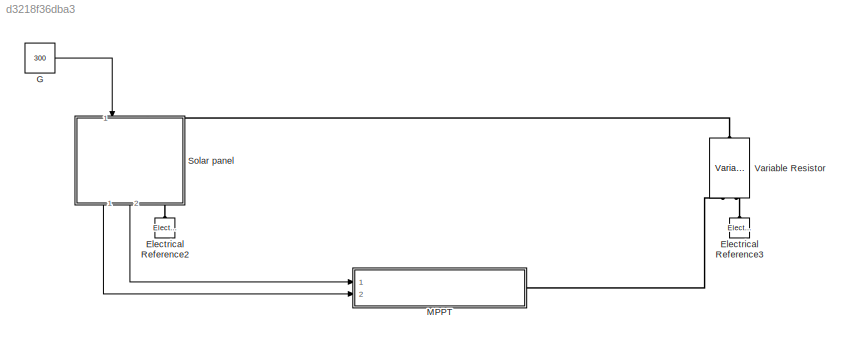
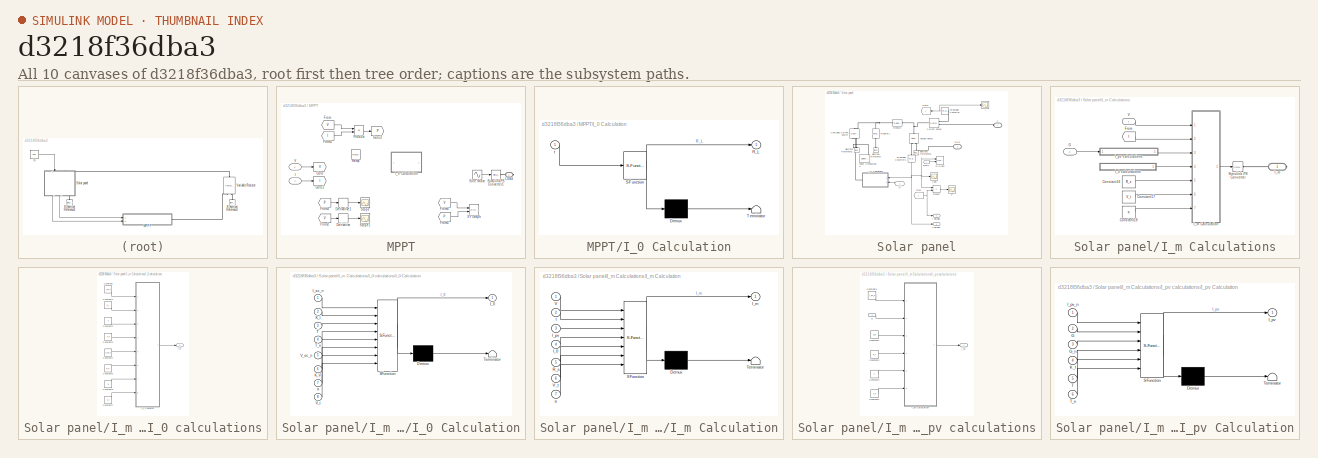
[diagram: thumbnail index - all 10 canvases of the model, root first then tree order]
MODEL slx_d3218f36dba3
KIND model
CONFIG AbsTol = auto
CONFIG FixedStep = 0.0001
CONFIG MaxStep = auto
CONFIG MinStep = auto
CONFIG RelTol = 1e-3
CONFIG SampleTimeConstraint = Unconstrained
CONFIG Solver = FixedStepAuto
CONFIG SolverMode = Auto
CONFIG SolverName = FixedStepAuto
CONFIG StartTime = 0.0
CONFIG StopTime = 10.0
BLOCK [Reference] Electrical Reference2  REF=fl_lib/Electrical/Electrical Elements/Electrical Reference
  Ports = [0, 0, 0, 0, 0, 1]
  SourceBlock = fl_lib/Electrical/Electrical Elements/Electrical Reference
  SourceType = Electrical Reference
BLOCK [Reference] Electrical Reference3  REF=fl_lib/Electrical/Electrical Elements/Electrical Reference
  Ports = [0, 0, 0, 0, 0, 1]
  SourceBlock = fl_lib/Electrical/Electrical Elements/Electrical Reference
  SourceType = Electrical Reference
BLOCK [Constant] G
  Value = 300
BLOCK [SubSystem] MPPT
  Ports = [2, 0, 0, 0, 0, 0, 1]
  RequestExecContextInheritance = off
  Variant = off
BLOCK [Derivative] MPPT/Derivative
BLOCK [Derivative] MPPT/Derivative1
BLOCK [From] MPPT/From
  GotoTag = V
BLOCK [From] MPPT/From1
  GotoTag = I
BLOCK [From] MPPT/From2
  GotoTag = V
BLOCK [From] MPPT/From3
  GotoTag = P
BLOCK [From] MPPT/From4
  GotoTag = V
BLOCK [From] MPPT/From5
  GotoTag = P
BLOCK [Goto] MPPT/Goto
  GotoTag = V
BLOCK [Goto] MPPT/Goto1
  GotoTag = I
BLOCK [Goto] MPPT/Goto2
  GotoTag = P
BLOCK [Inport] MPPT/I
  IconDisplay = Port number
  Port = 2
BLOCK [SubSystem] MPPT/I_0 Calculation
  ErrorFcn = Stateflow.Translate.translate
  PermitHierarchicalResolution = ExplicitOnly
  Ports = [1, 1]
  RequestExecContextInheritance = off
  SFBlockType = MATLAB Function
  TreatAsAtomicUnit = on
  Variant = off
BLOCK [Demux] MPPT/I_0 Calculation/ Demux 
  Outputs = 1
  Ports = [1, 1]
BLOCK [S-Function] MPPT/I_0 Calculation/ SFunction 
  EnableBusSupport = on
  FunctionName = sf_sfun
  PortCounts = [1 2]
  Ports = [1, 2]
  SFunctionDeploymentMode = off
  Tag = Stateflow S-Function GSK_PVModel_03 4
BLOCK [Terminator] MPPT/I_0 Calculation/ Terminator 
BLOCK [Outport] MPPT/I_0 Calculation/R_L
  IconDisplay = Port number
BLOCK [Inport] MPPT/I_0 Calculation/t
  IconDisplay = Port number
BLOCK [PMIOPort] MPPT/Load
  Port = 1
  Side = Right
BLOCK [Product] MPPT/Product
  InputSameDT = off
  OutDataTypeStr = Inherit: Inherit via internal rule
  Ports = [2, 1]
  RndMeth = Floor
  SaturateOnIntegerOverflow = off
BLOCK [Reference] MPPT/Ramp  REF=simulink/Sources/Ramp
  Ports = [0, 1]
  SourceBlock = simulink/Sources/Ramp
  SourceType = Ramp
BLOCK [Scope] MPPT/Scope
  Ports = [1]
  ScopeSpecificationString = Simulink.scopes.TimeScopeBlockCfg('CurrentConfiguration', extmgr.ConfigurationSet(extmgr.Configuration('Core','General UI',true),extmgr.Configuration('Core','Source UI',true),extmgr.Configuration('Sources','WiredSimulink',true,'DataLoggingVariableName','ScopeData3'),extmgr.Configuration('Visuals','Time Domain',true,'SerializedDisplays',{struct('MinYLimReal','-3310.60837','MaxYLimReal','487.92818',...<+1390ch>
BLOCK [Scope] MPPT/Scope1
  Ports = [1]
  ScopeSpecificationString = Simulink.scopes.TimeScopeBlockCfg('CurrentConfiguration', extmgr.ConfigurationSet(extmgr.Configuration('Core','General UI',true),extmgr.Configuration('Core','Source UI',true),extmgr.Configuration('Sources','WiredSimulink',true,'DataLoggingVariableName','ScopeData4'),extmgr.Configuration('Visuals','Time Domain',true,'SerializedDisplays',{struct('MinYLimReal','-1.00000','MaxYLimReal','1.00000','YLab...<+1395ch>
BLOCK [Reference] MPPT/Simulink-PS Converter1  REF=nesl_utility/Simulink-PS
Converter
  Ports = [1, 0, 0, 0, 0, 0, 1]
  SourceBlock = nesl_utility/Simulink-PS\nConverter
  SourceType = Simulink-PS\nConverter
BLOCK [Sin] MPPT/Sine Wave
  Amplitude = 25
  Bias = 25
  Ports = [0, 1]
  SampleTime = 0
BLOCK [Inport] MPPT/V
  IconDisplay = Port number
BLOCK [Reference] MPPT/XY Graph  REF=simulink/Sinks/XY Graph
  Ports = [2]
  SourceBlock = simulink/Sinks/XY Graph
  SourceType = XY scope.
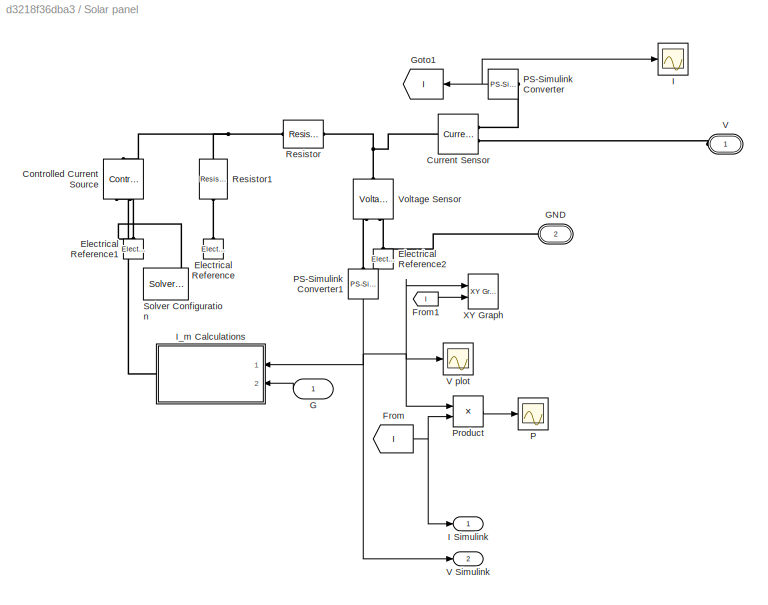
BLOCK [SubSystem] Solar panel
  Ports = [1, 2, 0, 0, 0, 1, 1]
  RequestExecContextInheritance = off
  Variant = off
BLOCK [Reference] Solar panel/Controlled Current Source  REF=fl_lib/Electrical/Electrical Sources/Controlled Current
Source
  Ports = [0, 0, 0, 0, 0, 1, 2]
  SourceBlock = fl_lib/Electrical/Electrical Sources/Controlled Current\nSource
  SourceType = Controlled Current\nSource
BLOCK [Reference] Solar panel/Current Sensor  REF=fl_lib/Electrical/Electrical Sensors/Current Sensor
  Ports = [0, 0, 0, 0, 0, 1, 2]
  SourceBlock = fl_lib/Electrical/Electrical Sensors/Current Sensor
  SourceType = Current Sensor
BLOCK [Reference] Solar panel/Electrical Reference  REF=fl_lib/Electrical/Electrical Elements/Electrical Reference
  Ports = [0, 0, 0, 0, 0, 1]
  SourceBlock = fl_lib/Electrical/Electrical Elements/Electrical Reference
  SourceType = Electrical Reference
BLOCK [Reference] Solar panel/Electrical Reference1  REF=fl_lib/Electrical/Electrical Elements/Electrical Reference
  Ports = [0, 0, 0, 0, 0, 1]
  SourceBlock = fl_lib/Electrical/Electrical Elements/Electrical Reference
  SourceType = Electrical Reference
BLOCK [Reference] Solar panel/Electrical Reference2  REF=fl_lib/Electrical/Electrical Elements/Electrical Reference
  Ports = [0, 0, 0, 0, 0, 1]
  SourceBlock = fl_lib/Electrical/Electrical Elements/Electrical Reference
  SourceType = Electrical Reference
BLOCK [From] Solar panel/From
  GotoTag = I
BLOCK [From] Solar panel/From1
  GotoTag = I
BLOCK [Inport] Solar panel/G
  IconDisplay = Port number
BLOCK [PMIOPort] Solar panel/GND
  Port = 2
  Side = Right
BLOCK [Goto] Solar panel/Goto1
  GotoTag = I
BLOCK [Scope] Solar panel/I
  Ports = [1]
  ScopeSpecificationString = Simulink.scopes.TimeScopeBlockCfg('CurrentConfiguration', extmgr.ConfigurationSet(extmgr.Configuration('Core','General UI',true),extmgr.Configuration('Core','Source UI',true),extmgr.Configuration('Sources','WiredSimulink',true),extmgr.Configuration('Visuals','Time Domain',true,'SerializedDisplays',{struct('MinYLimReal','1.9139','MaxYLimReal','1.91797','YLabelReal','','MinYLimMag','1.9139','MaxYLim...<+1335ch>
BLOCK [Outport] Solar panel/I Simulink
  IconDisplay = Port number
BLOCK [SubSystem] Solar panel/I_m Calculations
  Ports = [2, 0, 0, 0, 0, 0, 1]
  RequestExecContextInheritance = off
  Variant = off
BLOCK [Constant] Solar panel/I_m Calculations/Constant16
  Value = R_s
BLOCK [Constant] Solar panel/I_m Calculations/Constant17
  Value = V_t
BLOCK [Constant] Solar panel/I_m Calculations/Constant18
  Value = a
BLOCK [From] Solar panel/I_m Calculations/From
  GotoTag = I
BLOCK [Inport] Solar panel/I_m Calculations/G
  IconDisplay = Port number
  Port = 2
BLOCK [SubSystem] Solar panel/I_m Calculations/I_0 calculations
  Ports = [0, 1]
  RequestExecContextInheritance = off
  Variant = off
BLOCK [Constant] Solar panel/I_m Calculations/I_0 calculations/Constant
  Value = I_sc_n
BLOCK [Constant] Solar panel/I_m Calculations/I_0 calculations/Constant1
  Value = K_I
BLOCK [Constant] Solar panel/I_m Calculations/I_0 calculations/Constant2
  Value = T
BLOCK [Constant] Solar panel/I_m Calculations/I_0 calculations/Constant3
  Value = T_n
BLOCK [Constant] Solar panel/I_m Calculations/I_0 calculations/Constant4
  Value = V_oc_n
BLOCK [Constant] Solar panel/I_m Calculations/I_0 calculations/Constant5
  Value = K_V
BLOCK [Constant] Solar panel/I_m Calculations/I_0 calculations/Constant6
  Value = a
BLOCK [Constant] Solar panel/I_m Calculations/I_0 calculations/Constant7
  Value = V_t
BLOCK [Outport] Solar panel/I_m Calculations/I_0 calculations/I_0
  IconDisplay = Port number
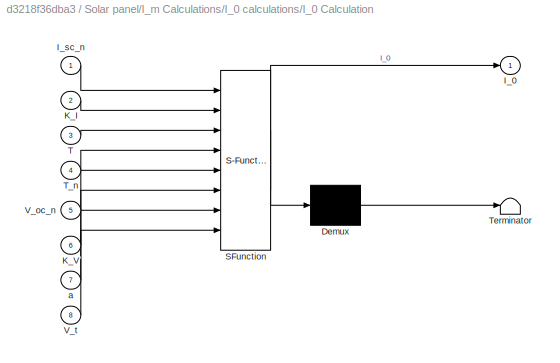
BLOCK [SubSystem] Solar panel/I_m Calculations/I_0 calculations/I_0 Calculation
  ErrorFcn = Stateflow.Translate.translate
  PermitHierarchicalResolution = ExplicitOnly
  Ports = [8, 1]
  RequestExecContextInheritance = off
  SFBlockType = MATLAB Function
  TreatAsAtomicUnit = on
  Variant = off
BLOCK [Demux] Solar panel/I_m Calculations/I_0 calculations/I_0 Calculation/ Demux 
  Outputs = 1
  Ports = [1, 1]
BLOCK [S-Function] Solar panel/I_m Calculations/I_0 calculations/I_0 Calculation/ SFunction 
  EnableBusSupport = on
  FunctionName = sf_sfun
  PortCounts = [8 2]
  Ports = [8, 2]
  SFunctionDeploymentMode = off
  Tag = Stateflow S-Function GSK_PVModel_03 2
BLOCK [Terminator] Solar panel/I_m Calculations/I_0 calculations/I_0 Calculation/ Terminator 
BLOCK [Outport] Solar panel/I_m Calculations/I_0 calculations/I_0 Calculation/I_0
  IconDisplay = Port number
BLOCK [Inport] Solar panel/I_m Calculations/I_0 calculations/I_0 Calculation/I_sc_n
  IconDisplay = Port number
BLOCK [Inport] Solar panel/I_m Calculations/I_0 calculations/I_0 Calculation/K_I
  IconDisplay = Port number
  Port = 2
BLOCK [Inport] Solar panel/I_m Calculations/I_0 calculations/I_0 Calculation/K_V
  IconDisplay = Port number
  Port = 6
BLOCK [Inport] Solar panel/I_m Calculations/I_0 calculations/I_0 Calculation/T
  IconDisplay = Port number
  Port = 3
BLOCK [Inport] Solar panel/I_m Calculations/I_0 calculations/I_0 Calculation/T_n
  IconDisplay = Port number
  Port = 4
BLOCK [Inport] Solar panel/I_m Calculations/I_0 calculations/I_0 Calculation/V_oc_n
  IconDisplay = Port number
  Port = 5
BLOCK [Inport] Solar panel/I_m Calculations/I_0 calculations/I_0 Calculation/V_t
  IconDisplay = Port number
  Port = 8
BLOCK [Inport] Solar panel/I_m Calculations/I_0 calculations/I_0 Calculation/a
  IconDisplay = Port number
  Port = 7
BLOCK [PMIOPort] Solar panel/I_m Calculations/I_m
  Port = 1
  Side = Right
BLOCK [SubSystem] Solar panel/I_m Calculations/I_m Calculation
  ErrorFcn = Stateflow.Translate.translate
  PermitHierarchicalResolution = ExplicitOnly
  Ports = [7, 1]
  RequestExecContextInheritance = off
  SFBlockType = MATLAB Function
  TreatAsAtomicUnit = on
  Variant = off
BLOCK [Demux] Solar panel/I_m Calculations/I_m Calculation/ Demux 
  Outputs = 1
  Ports = [1, 1]
BLOCK [S-Function] Solar panel/I_m Calculations/I_m Calculation/ SFunction 
  EnableBusSupport = on
  FunctionName = sf_sfun
  PortCounts = [7 2]
  Ports = [7, 2]
  SFunctionDeploymentMode = off
  Tag = Stateflow S-Function GSK_PVModel_03 3
BLOCK [Terminator] Solar panel/I_m Calculations/I_m Calculation/ Terminator 
BLOCK [Inport] Solar panel/I_m Calculations/I_m Calculation/I
  IconDisplay = Port number
  Port = 2
BLOCK [Inport] Solar panel/I_m Calculations/I_m Calculation/I_0
  IconDisplay = Port number
  Port = 4
BLOCK [Outport] Solar panel/I_m Calculations/I_m Calculation/I_m
  IconDisplay = Port number
BLOCK [Inport] Solar panel/I_m Calculations/I_m Calculation/I_pv
  IconDisplay = Port number
  Port = 3
BLOCK [Inport] Solar panel/I_m Calculations/I_m Calculation/R_s
  IconDisplay = Port number
  Port = 5
BLOCK [Inport] Solar panel/I_m Calculations/I_m Calculation/V
  IconDisplay = Port number
BLOCK [Inport] Solar panel/I_m Calculations/I_m Calculation/V_t
  IconDisplay = Port number
  Port = 6
BLOCK [Inport] Solar panel/I_m Calculations/I_m Calculation/a
  IconDisplay = Port number
  Port = 7
BLOCK [SubSystem] Solar panel/I_m Calculations/I_pv calculations
  Ports = [1, 1]
  RequestExecContextInheritance = off
  Variant = off
BLOCK [Constant] Solar panel/I_m Calculations/I_pv calculations/Constant1
  Value = G_n
BLOCK [Constant] Solar panel/I_m Calculations/I_pv calculations/Constant2
  Value = K_I
BLOCK [Constant] Solar panel/I_m Calculations/I_pv calculations/Constant3
  Value = T
BLOCK [Constant] Solar panel/I_m Calculations/I_pv calculations/Constant4
  Value = T_n
BLOCK [Constant] Solar panel/I_m Calculations/I_pv calculations/Constant5
  Value = I_pv_n
BLOCK [Inport] Solar panel/I_m Calculations/I_pv calculations/G
  IconDisplay = Port number
BLOCK [Outport] Solar panel/I_m Calculations/I_pv calculations/I_pv
  IconDisplay = Port number
BLOCK [SubSystem] Solar panel/I_m Calculations/I_pv calculations/I_pv Calculation
  ErrorFcn = Stateflow.Translate.translate
  PermitHierarchicalResolution = ExplicitOnly
  Ports = [6, 1]
  RequestExecContextInheritance = off
  SFBlockType = MATLAB Function
  TreatAsAtomicUnit = on
  Variant = off
BLOCK [Demux] Solar panel/I_m Calculations/I_pv calculations/I_pv Calculation/ Demux 
  Outputs = 1
  Ports = [1, 1]
BLOCK [S-Function] Solar panel/I_m Calculations/I_pv calculations/I_pv Calculation/ SFunction 
  EnableBusSupport = on
  FunctionName = sf_sfun
  PortCounts = [6 2]
  Ports = [6, 2]
  SFunctionDeploymentMode = off
  Tag = Stateflow S-Function GSK_PVModel_03 1
BLOCK [Terminator] Solar panel/I_m Calculations/I_pv calculations/I_pv Calculation/ Terminator 
BLOCK [Inport] Solar panel/I_m Calculations/I_pv calculations/I_pv Calculation/G
  IconDisplay = Port number
  Port = 2
BLOCK [Inport] Solar panel/I_m Calculations/I_pv calculations/I_pv Calculation/G_n
  IconDisplay = Port number
  Port = 3
BLOCK [Outport] Solar panel/I_m Calculations/I_pv calculations/I_pv Calculation/I_pv
  IconDisplay = Port number
BLOCK [Inport] Solar panel/I_m Calculations/I_pv calculations/I_pv Calculation/I_pv_n
  IconDisplay = Port number
BLOCK [Inport] Solar panel/I_m Calculations/I_pv calculations/I_pv Calculation/K_I
  IconDisplay = Port number
  Port = 4
BLOCK [Inport] Solar panel/I_m Calculations/I_pv calculations/I_pv Calculation/T
  IconDisplay = Port number
  Port = 5
BLOCK [Inport] Solar panel/I_m Calculations/I_pv calculations/I_pv Calculation/T_n
  IconDisplay = Port number
  Port = 6
BLOCK [Reference] Solar panel/I_m Calculations/Simulink-PS Converter  REF=nesl_utility/Simulink-PS
Converter
  Ports = [1, 0, 0, 0, 0, 0, 1]
  SourceBlock = nesl_utility/Simulink-PS\nConverter
  SourceType = Simulink-PS\nConverter
BLOCK [Inport] Solar panel/I_m Calculations/V
  IconDisplay = Port number
BLOCK [Scope] Solar panel/P
  Ports = [1]
  ScopeSpecificationString = Simulink.scopes.TimeScopeBlockCfg('CurrentConfiguration', extmgr.ConfigurationSet(extmgr.Configuration('Core','General UI',true),extmgr.Configuration('Core','Source UI',true),extmgr.Configuration('Sources','WiredSimulink',true,'DataLoggingVariableName','ScopeData2'),extmgr.Configuration('Visuals','Time Domain',true,'SerializedDisplays',{struct('MinYLimReal','81.9264','MaxYLimReal','101.9264','YLab...<+1394ch>
BLOCK [Reference] Solar panel/PS-Simulink Converter  REF=nesl_utility/PS-Simulink
Converter
  Ports = [0, 1, 0, 0, 0, 1]
  SourceBlock = nesl_utility/PS-Simulink\nConverter
  SourceType = PS-Simulink\nConverter
BLOCK [Reference] Solar panel/PS-Simulink Converter1  REF=nesl_utility/PS-Simulink
Converter
  Ports = [0, 1, 0, 0, 0, 1]
  SourceBlock = nesl_utility/PS-Simulink\nConverter
  SourceType = PS-Simulink\nConverter
BLOCK [Product] Solar panel/Product
  InputSameDT = off
  OutDataTypeStr = Inherit: Inherit via internal rule
  Ports = [2, 1]
  RndMeth = Floor
  SaturateOnIntegerOverflow = off
BLOCK [Reference] Solar panel/Resistor  REF=fl_lib/Electrical/Electrical Elements/Resistor
  Ports = [0, 0, 0, 0, 0, 1, 1]
  SourceBlock = fl_lib/Electrical/Electrical Elements/Resistor
  SourceType = Resistor
BLOCK [Reference] Solar panel/Resistor1  REF=fl_lib/Electrical/Electrical Elements/Resistor
  Ports = [0, 0, 0, 0, 0, 1, 1]
  SourceBlock = fl_lib/Electrical/Electrical Elements/Resistor
  SourceType = Resistor
BLOCK [Reference] Solar panel/Solver Configuration  REF=nesl_utility/Solver
Configuration
  Ports = [0, 0, 0, 0, 0, 0, 1]
  SourceBlock = nesl_utility/Solver\nConfiguration
  SourceType = Solver\nConfiguration
BLOCK [PMIOPort] Solar panel/V
  Port = 1
  Side = Left
BLOCK [Outport] Solar panel/V Simulink
  IconDisplay = Port number
  Port = 2
BLOCK [Scope] Solar panel/V plot
  Ports = [1]
  ScopeSpecificationString = Simulink.scopes.TimeScopeBlockCfg('CurrentConfiguration', extmgr.ConfigurationSet(extmgr.Configuration('Core','General UI',true),extmgr.Configuration('Core','Source UI',true),extmgr.Configuration('Sources','WiredSimulink',true,'DataLoggingVariableName','ScopeData1'),extmgr.Configuration('Visuals','Time Domain',true,'SerializedDisplays',{struct('MinYLimReal','6.5451159','MaxYLimReal','6.54511689','...<+1398ch>
BLOCK [Reference] Solar panel/Voltage Sensor  REF=fl_lib/Electrical/Electrical Sensors/Voltage Sensor
  Ports = [0, 0, 0, 0, 0, 1, 2]
  SourceBlock = fl_lib/Electrical/Electrical Sensors/Voltage Sensor
  SourceType = Voltage Sensor
BLOCK [Reference] Solar panel/XY Graph  REF=simulink/Sinks/XY Graph
  Ports = [2]
  SourceBlock = simulink/Sinks/XY Graph
  SourceType = XY scope.
BLOCK [Reference] Variable Resistor  REF=fl_lib/Electrical/Electrical Elements/Variable Resistor
  Ports = [0, 0, 0, 0, 0, 2, 1]
  SourceBlock = fl_lib/Electrical/Electrical Elements/Variable Resistor
  SourceType = Variable Resistor
LINE G:1 -> Solar panel:1
LINE MPPT/Derivative1:1 -> MPPT/Scope:1
LINE MPPT/Derivative:1 -> MPPT/Scope1:1
LINE MPPT/From1:1 -> MPPT/Product:2
LINE MPPT/From2:1 -> MPPT/Derivative:1
LINE MPPT/From3:1 -> MPPT/Derivative1:1
LINE MPPT/From4:1 -> MPPT/XY Graph:1
LINE MPPT/From5:1 -> MPPT/XY Graph:2
LINE MPPT/From:1 -> MPPT/Product:1
LINE MPPT/I:1 -> MPPT/Goto1:1
LINE MPPT/Product:1 -> MPPT/Goto2:1
LINE MPPT/Sine Wave:1 -> MPPT/Simulink-PS Converter1:1
LINE MPPT/V:1 -> MPPT/Goto:1
LINE Solar panel/From1:1 -> Solar panel/XY Graph:2
NET Solar panel/From:1 -> Solar panel/I Simulink:1, Solar panel/Product:2
LINE Solar panel/G:1 -> Solar panel/I_m Calculations:2
LINE Solar panel/I_m Calculations/Constant16:1 -> Solar panel/I_m Calculations/I_m Calculation:5
LINE Solar panel/I_m Calculations/Constant17:1 -> Solar panel/I_m Calculations/I_m Calculation:6
LINE Solar panel/I_m Calculations/Constant18:1 -> Solar panel/I_m Calculations/I_m Calculation:7
LINE Solar panel/I_m Calculations/From:1 -> Solar panel/I_m Calculations/I_m Calculation:2
LINE Solar panel/I_m Calculations/G:1 -> Solar panel/I_m Calculations/I_pv calculations:1
LINE Solar panel/I_m Calculations/I_0 calculations/Constant1:1 -> Solar panel/I_m Calculations/I_0 calculations/I_0 Calculation:2
LINE Solar panel/I_m Calculations/I_0 calculations/Constant2:1 -> Solar panel/I_m Calculations/I_0 calculations/I_0 Calculation:3
LINE Solar panel/I_m Calculations/I_0 calculations/Constant3:1 -> Solar panel/I_m Calculations/I_0 calculations/I_0 Calculation:4
LINE Solar panel/I_m Calculations/I_0 calculations/Constant4:1 -> Solar panel/I_m Calculations/I_0 calculations/I_0 Calculation:5
LINE Solar panel/I_m Calculations/I_0 calculations/Constant5:1 -> Solar panel/I_m Calculations/I_0 calculations/I_0 Calculation:6
LINE Solar panel/I_m Calculations/I_0 calculations/Constant6:1 -> Solar panel/I_m Calculations/I_0 calculations/I_0 Calculation:7
LINE Solar panel/I_m Calculations/I_0 calculations/Constant7:1 -> Solar panel/I_m Calculations/I_0 calculations/I_0 Calculation:8
LINE Solar panel/I_m Calculations/I_0 calculations/Constant:1 -> Solar panel/I_m Calculations/I_0 calculations/I_0 Calculation:1
LINE Solar panel/I_m Calculations/I_0 calculations/I_0 Calculation:1 -> Solar panel/I_m Calculations/I_0 calculations/I_0:1
LINE Solar panel/I_m Calculations/I_0 calculations:1 -> Solar panel/I_m Calculations/I_m Calculation:4
LINE Solar panel/I_m Calculations/I_m Calculation:1 -> Solar panel/I_m Calculations/Simulink-PS Converter:1
LINE Solar panel/I_m Calculations/I_pv calculations/Constant1:1 -> Solar panel/I_m Calculations/I_pv calculations/I_pv Calculation:3
LINE Solar panel/I_m Calculations/I_pv calculations/Constant2:1 -> Solar panel/I_m Calculations/I_pv calculations/I_pv Calculation:4
LINE Solar panel/I_m Calculations/I_pv calculations/Constant3:1 -> Solar panel/I_m Calculations/I_pv calculations/I_pv Calculation:5
LINE Solar panel/I_m Calculations/I_pv calculations/Constant4:1 -> Solar panel/I_m Calculations/I_pv calculations/I_pv Calculation:6
LINE Solar panel/I_m Calculations/I_pv calculations/Constant5:1 -> Solar panel/I_m Calculations/I_pv calculations/I_pv Calculation:1
LINE Solar panel/I_m Calculations/I_pv calculations/G:1 -> Solar panel/I_m Calculations/I_pv calculations/I_pv Calculation:2
LINE Solar panel/I_m Calculations/I_pv calculations/I_pv Calculation:1 -> Solar panel/I_m Calculations/I_pv calculations/I_pv:1
LINE Solar panel/I_m Calculations/I_pv calculations:1 -> Solar panel/I_m Calculations/I_m Calculation:3
LINE Solar panel/I_m Calculations/V:1 -> Solar panel/I_m Calculations/I_m Calculation:1
NET Solar panel/PS-Simulink Converter1:1 -> Solar panel/I_m Calculations:1, Solar panel/Product:1, Solar panel/V Simulink:1, Solar panel/V plot:1, Solar panel/XY Graph:1
NET Solar panel/PS-Simulink Converter:1 -> Solar panel/Goto1:1, Solar panel/I:1
LINE Solar panel/Product:1 -> Solar panel/P:1
LINE Solar panel:1 -> MPPT:2
LINE Solar panel:2 -> MPPT:1
PLINE Electrical Reference2:LConn1 -- Solar panel:RConn1
PLINE Electrical Reference3:LConn1 -- Variable Resistor:LConn2
PLINE MPPT/Load:RConn1 -- MPPT/Simulink-PS Converter1:RConn1
PLINE MPPT:RConn1 -- Variable Resistor:LConn1
PNET net1: Solar panel/Controlled Current Source:LConn1 -- Solar panel/Resistor1:LConn1 -- Solar panel/Resistor:LConn1
PLINE Solar panel/Controlled Current Source:RConn1 -- Solar panel/I_m Calculations:RConn1
PNET net2: Solar panel/Controlled Current Source:RConn2 -- Solar panel/Electrical Reference1:LConn1 -- Solar panel/Solver Configuration:RConn1
PNET net3: Solar panel/Current Sensor:LConn1 -- Solar panel/Resistor:RConn1 -- Solar panel/Voltage Sensor:LConn1
PLINE Solar panel/Current Sensor:RConn1 -- Solar panel/PS-Simulink Converter:LConn1
PLINE Solar panel/Current Sensor:RConn2 -- Solar panel/V:RConn1
PNET net4: Solar panel/Electrical Reference2:LConn1 -- Solar panel/GND:RConn1 -- Solar panel/Voltage Sensor:RConn2
PLINE Solar panel/Electrical Reference:LConn1 -- Solar panel/Resistor1:RConn1
PLINE Solar panel/I_m Calculations/I_m:RConn1 -- Solar panel/I_m Calculations/Simulink-PS Converter:RConn1
PLINE Solar panel/PS-Simulink Converter1:LConn1 -- Solar panel/Voltage Sensor:RConn1
PLINE Solar panel:LConn1 -- Variable Resistor:RConn1
note: NET lines group one-source signal fan-out (src -> all destinations, sorted); 1:1 wires keep LINE; PNET lines group multi-terminal physical nets as a canonical sorted terminal list (undirected conserving connections); 2-terminal nets keep the pairwise PLINE form
CHART Solar panel/I_m Calculations/I_pv calculations/I_pv Calculation states=1 transitions=1
  STATE_LABEL 'eML_blk_kernel()'
  STATE_LABEL 'SCRIPT:\nfunction I_pv = fcn(I_pv_n, G, G_n, K_I, T, T_n )\n%#codegen\nDelta_T = (T - T_n);\nI_pv = (I_pv_n + K_I*Delta_T)*G/G_n;'
CHART Solar panel/I_m Calculations/I_0 calculations/I_0 Calculation states=1 transitions=1
  STATE_LABEL 'eML_blk_kernel()'
  STATE_LABEL 'SCRIPT:\nfunction I_0 = fcn(I_sc_n, K_I, T, T_n, V_oc_n, K_V, a, V_t)\n%#codegen\nDelta_T = (T - T_n);\nI_0 = (I_sc_n + K_I * Delta_T )/(exp((V_oc_n + K_V*Delta_T)/(a*V_t))-1);'
CHART Solar panel/I_m Calculations/I_m Calculation states=1 transitions=1
  STATE_LABEL 'eML_blk_kernel()'
  STATE_LABEL 'SCRIPT:\nfunction I_m = fcn(V, I, I_pv, I_0, R_s, V_t, a)\n%#codegen\nI_m = I_pv - I_0*(exp((V+R_s*I)/(V_t*a)-1));'
CHART MPPT/I_0 Calculation states=1 transitions=1
  STATE_LABEL 'eML_blk_kernel()'
  STATE_LABEL 'SCRIPT:\nfunction R_L = fcn(t)\n%#codegen\nR_L = mod(t,1);'
